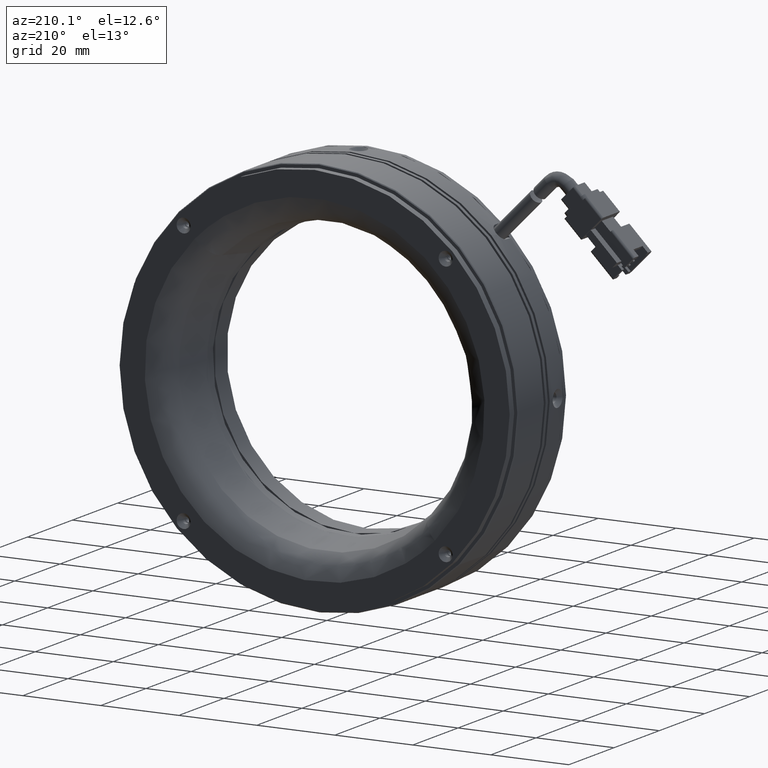
[diagram: clean part render]
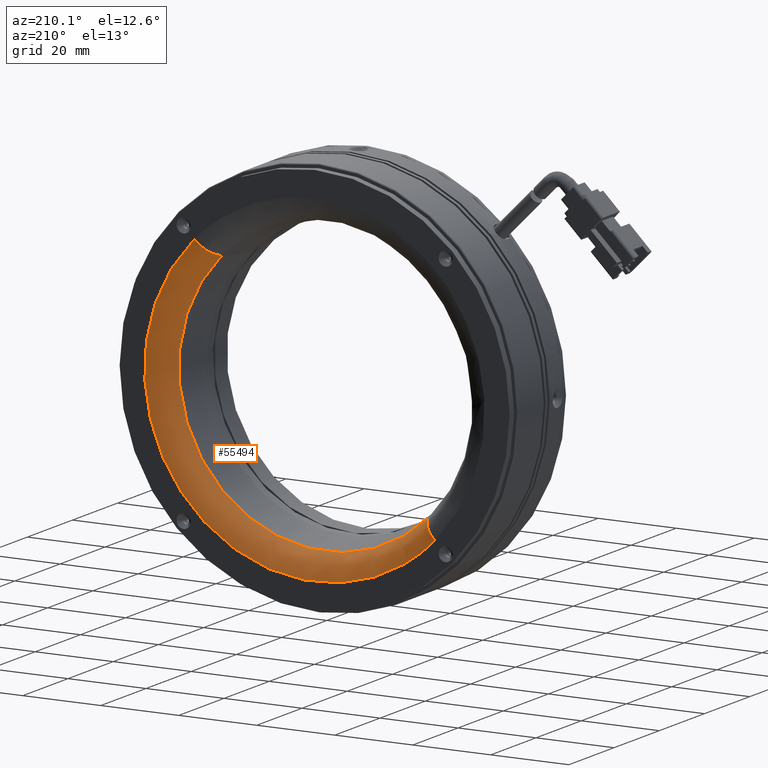
[diagram: same view with one face highlighted and labeled with its STEP entity id]
A machine part, auxiliary view. The second image highlights one B-rep face of the part: STEP entity #55494.
In plain terms, the highlighted face is a freeform B-spline surface patch.
Its self-contained STEP definition (entity closure, byte-faithful):
#4051 = CARTESIAN_POINT ( 'NONE',  ( -26.64803762780602600, 20.44903624052007300, -26.64803762780627800 ) ) ;
#5168 = AXIS2_PLACEMENT_3D ( 'NONE', #8823, #59723, #16179 ) ;
#6552 = CARTESIAN_POINT ( 'NONE',  ( -30.82622306972614700, 25.40714717451851000, -30.82622306972638900 ) ) ;
#7791 = CIRCLE ( 'NONE', #5168, 6.000000000000000900 ) ;
#8823 = CARTESIAN_POINT ( 'NONE',  ( -30.82622306972614700, 19.40714717451851000, -30.82622306972638900 ) ) ;
#9145 = CIRCLE ( 'NONE', #85410, 37.68601622387225100 ) ;
#11022 = CARTESIAN_POINT ( 'NONE',  ( 30.82622306972662000, 25.40714717451851000, -92.47866920917933000 ) ) ;
#11341 = CARTESIAN_POINT ( 'NONE',  ( 79.94411288341923700, 20.44903624052007300, -26.64803762780642100 ) ) ;
#12994 = EDGE_LOOP ( 'NONE', ( #53630, #82114, #13795, #36907 ) ) ;
#13795 = ORIENTED_EDGE ( 'NONE', *, *, #55361, .T. ) ;
#16179 = DIRECTION ( 'NONE',  ( -0.7071067811865483500, 0.0000000000000000000, -0.7071067811865465700 ) ) ;
#17399 = AXIS2_PLACEMENT_3D ( 'NONE', #78042, #34719, #85372 ) ;
#18370 = CARTESIAN_POINT ( 'NONE',  ( 30.82622306972681500, 25.40714717451851400, 30.82622306972639200 ) ) ;
#20218 = DIRECTION ( 'NONE',  ( 5.593399160027876600E-020, -1.000000000000000000, 5.741257191681600800E-020 ) ) ;
#22288 = CARTESIAN_POINT ( 'NONE',  ( 30.82622306972681900, 25.40714717451851000, 30.82622306972639200 ) ) ;
#24873 = VERTEX_POINT ( 'NONE', #78861 ) ;
#25744 = CARTESIAN_POINT ( 'NONE',  ( 28.67217794054154800, 25.40714717451850600, -86.01653382162409400 ) ) ;
#26378 = EDGE_CURVE ( 'NONE', #24873, #73497, #9145, .T. ) ;
#33128 = CARTESIAN_POINT ( 'NONE',  ( 28.67217794054173300, 25.40714717451851000, 28.67217794054131400 ) ) ;
#33195 = EDGE_CURVE ( 'NONE', #58769, #48440, #40738, .T. ) ;
#34719 = DIRECTION ( 'NONE',  ( -0.7071067811865463500, 1.045514168352555100E-021, 0.7071067811865486800 ) ) ;
#35620 = CARTESIAN_POINT ( 'NONE',  ( 92.47866920917958600, 25.40714717451852100, -30.82622306972657400 ) ) ;
#36907 = ORIENTED_EDGE ( 'NONE', *, *, #26378, .T. ) ;
#39136 = CARTESIAN_POINT ( 'NONE',  ( -30.82622306972614700, 25.40714717451851400, -30.82622306972638900 ) ) ;
#40384 = CARTESIAN_POINT ( 'NONE',  ( 27.02208363910183000, 23.44903624052008300, -81.06625091730488500 ) ) ;
#40738 =( BOUNDED_CURVE ( )  B_SPLINE_CURVE ( 3, ( #42867, #35620, #50169, #6552 ),
 .UNSPECIFIED., .F., .F. ) 
 B_SPLINE_CURVE_WITH_KNOTS ( ( 4, 4 ),
 ( 0.0000000000000000000, 1.000000000000000000 ),
 .UNSPECIFIED. ) 
 CURVE ( )  GEOMETRIC_REPRESENTATION_ITEM ( )  RATIONAL_B_SPLINE_CURVE ( ( 1.000000000000000000, 0.3333333333333333700, 0.3333333333333333700, 1.000000000000000000 ) ) 
 REPRESENTATION_ITEM ( '' )  );
#42867 = CARTESIAN_POINT ( 'NONE',  ( 30.82622306972681900, 25.40714717451851000, 30.82622306972639200 ) ) ;
#47630 = CARTESIAN_POINT ( 'NONE',  ( 27.02208363910200000, 23.44903624052008000, 27.02208363910159200 ) ) ;
#48440 = VERTEX_POINT ( 'NONE', #69454 ) ;
#50169 = CARTESIAN_POINT ( 'NONE',  ( 30.82622306972662700, 25.40714717451852100, -92.47866920917934400 ) ) ;
#50862 =( BOUNDED_SURFACE ( )  B_SPLINE_SURFACE ( 3, 3, ( 
 ( #39136, #11022, #61885, #18370 ),
 ( #69214, #25744, #76456, #33128 ),
 ( #83762, #40384, #91105, #47630 ),
 ( #4051, #54923, #11341, #62190 ) ),
 .UNSPECIFIED., .F., .F., .F. ) 
 B_SPLINE_SURFACE_WITH_KNOTS ( ( 4, 4 ),
 ( 4, 4 ),
 ( 0.0000000000000000000, 1.000000000000000000 ),
 ( 0.0000000000000000000, 1.000000000000000000 ),
 .UNSPECIFIED. ) 
 GEOMETRIC_REPRESENTATION_ITEM ( )  RATIONAL_B_SPLINE_SURFACE ( (
 ( 1.000000000000000000, 0.3333333333333334300, 0.3333333333333334300, 1.000000000000000000),
 ( 0.8440296287459846400, 0.2813432095819949400, 0.2813432095819949400, 0.8440296287459846400),
 ( 0.8440296287459846400, 0.2813432095819949400, 0.2813432095819949400, 0.8440296287459846400),
 ( 1.000000000000000000, 0.3333333333333334300, 0.3333333333333334300, 1.000000000000000000) ) ) 
 REPRESENTATION_ITEM ( '' )  SURFACE ( )  );
#50968 = FACE_OUTER_BOUND ( 'NONE', #12994, .T. ) ;
#52805 = CIRCLE ( 'NONE', #17399, 5.999999999999998200 ) ;
#53630 = ORIENTED_EDGE ( 'NONE', *, *, #81672, .F. ) ;
#54923 = CARTESIAN_POINT ( 'NONE',  ( 26.64803762780652700, 20.44903624052007300, -79.94411288341899500 ) ) ;
#55361 = EDGE_CURVE ( 'NONE', #48440, #24873, #7791, .T. ) ;
#55494 = ADVANCED_FACE ( 'NONE', ( #50968 ), #50862, .T. ) ;
#58769 = VERTEX_POINT ( 'NONE', #22288 ) ;
#59723 = DIRECTION ( 'NONE',  ( 0.7071067811865464600, -1.045514168352553600E-021, -0.7071067811865485700 ) ) ;
#61885 = CARTESIAN_POINT ( 'NONE',  ( 92.47866920917957100, 25.40714717451851000, -30.82622306972656300 ) ) ;
#62190 = CARTESIAN_POINT ( 'NONE',  ( 26.64803762780669100, 20.44903624052007300, 26.64803762780628200 ) ) ;
#63742 = CARTESIAN_POINT ( 'NONE',  ( 3.317160594367525600E-013, 20.44903624052007300, 2.765983579064349600E-015 ) ) ;
#69214 = CARTESIAN_POINT ( 'NONE',  ( -28.67217794054106500, 25.40714717451851000, -28.67217794054131000 ) ) ;
#69454 = CARTESIAN_POINT ( 'NONE',  ( -30.82622306972614700, 25.40714717451851000, -30.82622306972638900 ) ) ;
#71027 = DIRECTION ( 'NONE',  ( -0.7071067811865485700, 0.0000000000000000000, -0.7071067811865465700 ) ) ;
#73001 = CARTESIAN_POINT ( 'NONE',  ( 26.64803762780669100, 20.44903624052007300, 26.64803762780628200 ) ) ;
#73497 = VERTEX_POINT ( 'NONE', #73001 ) ;
#76456 = CARTESIAN_POINT ( 'NONE',  ( 86.01653382162433600, 25.40714717451850600, -28.67217794054146700 ) ) ;
#78042 = CARTESIAN_POINT ( 'NONE',  ( 30.82622306972681500, 19.40714717451851000, 30.82622306972639200 ) ) ;
#78861 = CARTESIAN_POINT ( 'NONE',  ( -26.64803762780602300, 20.44903624052007300, -26.64803762780628200 ) ) ;
#81672 = EDGE_CURVE ( 'NONE', #58769, #73497, #52805, .T. ) ;
#82114 = ORIENTED_EDGE ( 'NONE', *, *, #33195, .T. ) ;
#83762 = CARTESIAN_POINT ( 'NONE',  ( -27.02208363910133600, 23.44903624052008000, -27.02208363910158400 ) ) ;
#85372 = DIRECTION ( 'NONE',  ( 0.7071067811865486800, 0.0000000000000000000, 0.7071067811865463500 ) ) ;
#85410 = AXIS2_PLACEMENT_3D ( 'NONE', #63742, #20218, #71027 ) ;
#91105 = CARTESIAN_POINT ( 'NONE',  ( 81.06625091730516900, 23.44903624052008300, -27.02208363910173700 ) ) ;